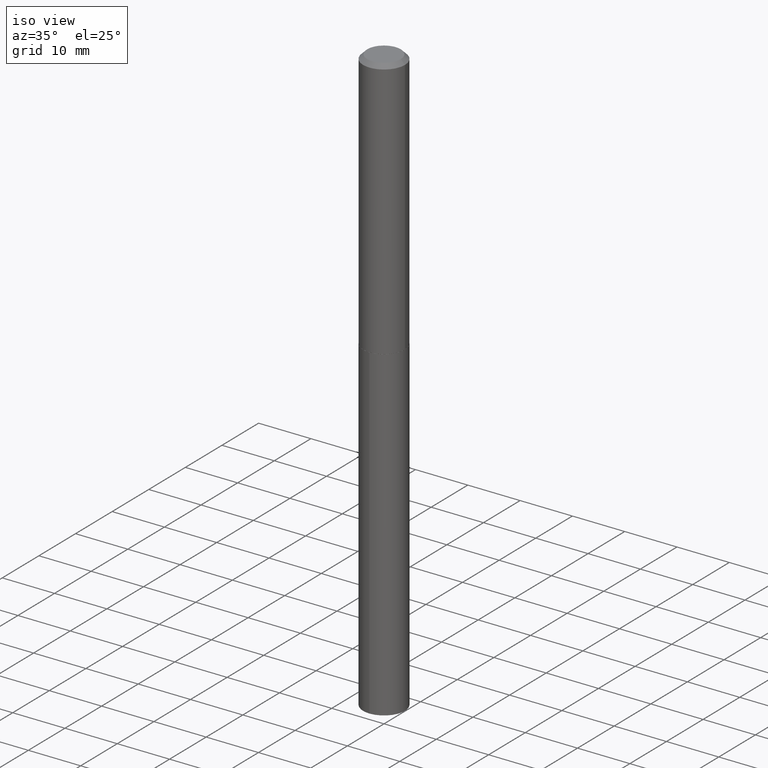
[diagram: clean part render]
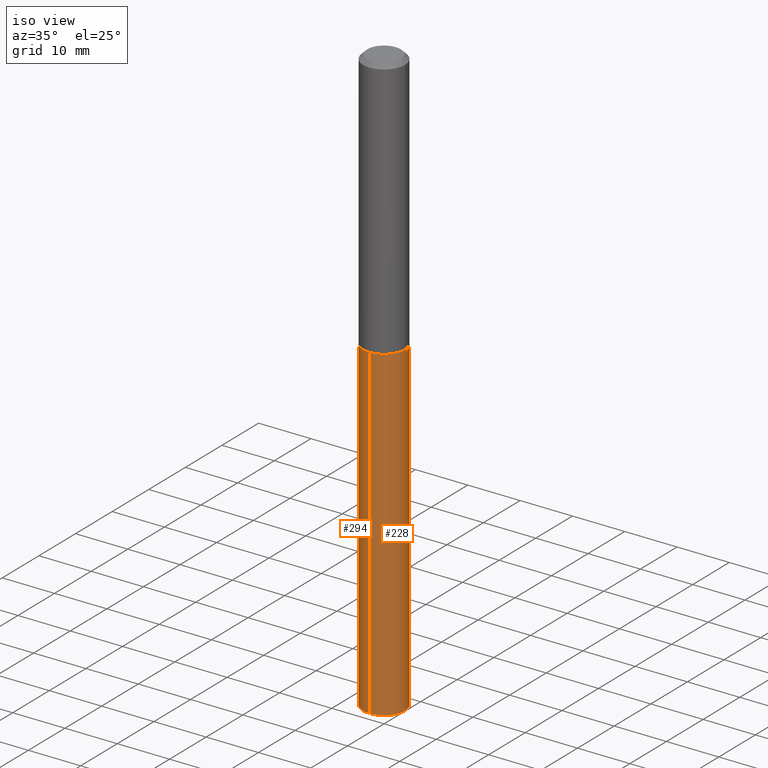
[diagram: same view with one multi-face feature highlighted, each face labeled with its STEP entity id]
A machine part, iso view. The highlighted faces form ONE feature: a constant-radius fillet chain: 2 tangent blend faces with common blend radius 4.0005 mm. The faces share edges in the B-rep.
Their STEP definitions:
[1] entity #294 (Cylinder):
#20 = CARTESIAN_POINT ( 'NONE',  ( 1.082641189133063271E-28, -1.545044664000453265E-14, -4.426159100090647058 ) ) ;
#29 = CARTESIAN_POINT ( 'NONE',  ( -1.099816621735538768E-15, -0.1575000000000068567, -1.968499999999999250 ) ) ;
#43 = FACE_OUTER_BOUND ( 'NONE', #319, .T. ) ;
#55 = AXIS2_PLACEMENT_3D ( 'NONE', #269, #210, #143 ) ;
#56 = ORIENTED_EDGE ( 'NONE', *, *, #231, .T. ) ;
#78 = EDGE_CURVE ( 'NONE', #139, #279, #236, .T. ) ;
#84 = ORIENTED_EDGE ( 'NONE', *, *, #126, .F. ) ;
#89 = DIRECTION ( 'NONE',  ( -2.446436345111260820E-29, 3.490095768032040163E-15, 1.000000000000000000 ) ) ;
#95 = CARTESIAN_POINT ( 'NONE',  ( -1.099816621735478617E-15, -0.1575000000000154332, -4.426159100090646170 ) ) ;
#103 = VERTEX_POINT ( 'NONE', #95 ) ;
#105 = VERTEX_POINT ( 'NONE', #385 ) ;
#114 = CARTESIAN_POINT ( 'NONE',  ( 1.119104808822265875E-15, 0.1574999999999845968, -4.426159100090647947 ) ) ;
#118 = EDGE_CURVE ( 'NONE', #103, #105, #233, .T. ) ;
#123 = DIRECTION ( 'NONE',  ( -2.446436345111260820E-29, 3.490095768032040163E-15, 1.000000000000000000 ) ) ;
#126 = EDGE_CURVE ( 'NONE', #279, #105, #323, .T. ) ;
#139 = VERTEX_POINT ( 'NONE', #114 ) ;
#143 = DIRECTION ( 'NONE',  ( -6.982962677686264344E-15, -1.000000000000000000, 3.469013325287953293E-15 ) ) ;
#149 = CIRCLE ( 'NONE', #206, 0.1575000000000000011 ) ;
#156 = CARTESIAN_POINT ( 'NONE',  ( 1.119104808822266269E-15, 0.1574999999999931177, -1.968500000000000139 ) ) ;
#160 = DIRECTION ( 'NONE',  ( -6.982962677686264344E-15, -1.000000000000000000, 3.469013325287953293E-15 ) ) ;
#182 = VECTOR ( 'NONE', #123, 39.37007874015748143 ) ;
#206 = AXIS2_PLACEMENT_3D ( 'NONE', #20, #256, #377 ) ;
#210 = DIRECTION ( 'NONE',  ( -2.446436345111260540E-29, 3.490095768032040163E-15, 1.000000000000000000 ) ) ;
#222 = CYLINDRICAL_SURFACE ( 'NONE', #289, 0.1575000000000000011 ) ;
#231 = EDGE_CURVE ( 'NONE', #139, #103, #149, .T. ) ;
#233 = LINE ( 'NONE', #29, #182 ) ;
#236 = LINE ( 'NONE', #353, #296 ) ;
#256 = DIRECTION ( 'NONE',  ( -2.446436345111260540E-29, 3.490095768032040163E-15, 1.000000000000000000 ) ) ;
#257 = DIRECTION ( 'NONE',  ( -2.446436345111260540E-29, 3.490095768032040163E-15, 1.000000000000000000 ) ) ;
#269 = CARTESIAN_POINT ( 'NONE',  ( 4.813905344975440153E-29, -6.872981015512730130E-15, -1.968499999999999472 ) ) ;
#279 = VERTEX_POINT ( 'NONE', #156 ) ;
#287 = ORIENTED_EDGE ( 'NONE', *, *, #78, .F. ) ;
#289 = AXIS2_PLACEMENT_3D ( 'NONE', #374, #257, #160 ) ;
#294 = ADVANCED_FACE ( 'NONE', ( #43 ), #222, .T. ) ;
#296 = VECTOR ( 'NONE', #89, 39.37007874015748143 ) ;
#319 = EDGE_LOOP ( 'NONE', ( #287, #56, #379, #84 ) ) ;
#323 = CIRCLE ( 'NONE', #55, 0.1575000000000000011 ) ;
#353 = CARTESIAN_POINT ( 'NONE',  ( 1.119104808822205527E-15, 0.1574999999999931177, -1.968500000000000361 ) ) ;
#374 = CARTESIAN_POINT ( 'NONE',  ( 4.813905344975440714E-29, -6.872981015512730918E-15, -1.968499999999999694 ) ) ;
#377 = DIRECTION ( 'NONE',  ( -6.982962677686264344E-15, -1.000000000000000000, 3.469013325287953293E-15 ) ) ;
#379 = ORIENTED_EDGE ( 'NONE', *, *, #118, .T. ) ;
#385 = CARTESIAN_POINT ( 'NONE',  ( -1.099816621735538768E-15, -0.1575000000000068567, -1.968499999999999028 ) ) ;
[2] entity #228 (Cylinder):
#13 = ORIENTED_EDGE ( 'NONE', *, *, #49, .F. ) ;
#19 = ORIENTED_EDGE ( 'NONE', *, *, #33, .T. ) ;
#27 = DIRECTION ( 'NONE',  ( -6.982962677686264344E-15, -1.000000000000000000, 3.469013325287953293E-15 ) ) ;
#29 = CARTESIAN_POINT ( 'NONE',  ( -1.099816621735538768E-15, -0.1575000000000068567, -1.968499999999999250 ) ) ;
#33 = EDGE_CURVE ( 'NONE', #103, #139, #337, .T. ) ;
#48 = ORIENTED_EDGE ( 'NONE', *, *, #118, .F. ) ;
#49 = EDGE_CURVE ( 'NONE', #105, #279, #186, .T. ) ;
#60 = CARTESIAN_POINT ( 'NONE',  ( 1.082641189133063271E-28, -1.545044664000453265E-14, -4.426159100090647058 ) ) ;
#78 = EDGE_CURVE ( 'NONE', #139, #279, #236, .T. ) ;
#88 = DIRECTION ( 'NONE',  ( -2.446436345111260540E-29, 3.490095768032040163E-15, 1.000000000000000000 ) ) ;
#89 = DIRECTION ( 'NONE',  ( -2.446436345111260820E-29, 3.490095768032040163E-15, 1.000000000000000000 ) ) ;
#95 = CARTESIAN_POINT ( 'NONE',  ( -1.099816621735478617E-15, -0.1575000000000154332, -4.426159100090646170 ) ) ;
#103 = VERTEX_POINT ( 'NONE', #95 ) ;
#105 = VERTEX_POINT ( 'NONE', #385 ) ;
#114 = CARTESIAN_POINT ( 'NONE',  ( 1.119104808822265875E-15, 0.1574999999999845968, -4.426159100090647947 ) ) ;
#118 = EDGE_CURVE ( 'NONE', #103, #105, #233, .T. ) ;
#120 = ORIENTED_EDGE ( 'NONE', *, *, #78, .T. ) ;
#123 = DIRECTION ( 'NONE',  ( -2.446436345111260820E-29, 3.490095768032040163E-15, 1.000000000000000000 ) ) ;
#139 = VERTEX_POINT ( 'NONE', #114 ) ;
#156 = CARTESIAN_POINT ( 'NONE',  ( 1.119104808822266269E-15, 0.1574999999999931177, -1.968500000000000139 ) ) ;
#169 = DIRECTION ( 'NONE',  ( -2.446436345111260540E-29, 3.490095768032040163E-15, 1.000000000000000000 ) ) ;
#179 = CARTESIAN_POINT ( 'NONE',  ( 4.813905344975440153E-29, -6.872981015512730130E-15, -1.968499999999999472 ) ) ;
#182 = VECTOR ( 'NONE', #123, 39.37007874015748143 ) ;
#186 = CIRCLE ( 'NONE', #268, 0.1575000000000000011 ) ;
#228 = ADVANCED_FACE ( 'NONE', ( #380 ), #349, .T. ) ;
#233 = LINE ( 'NONE', #29, #182 ) ;
#236 = LINE ( 'NONE', #353, #296 ) ;
#268 = AXIS2_PLACEMENT_3D ( 'NONE', #179, #88, #27 ) ;
#279 = VERTEX_POINT ( 'NONE', #156 ) ;
#286 = DIRECTION ( 'NONE',  ( -6.982962677686264344E-15, -1.000000000000000000, 3.469013325287953293E-15 ) ) ;
#296 = VECTOR ( 'NONE', #89, 39.37007874015748143 ) ;
#306 = AXIS2_PLACEMENT_3D ( 'NONE', #60, #327, #356 ) ;
#327 = DIRECTION ( 'NONE',  ( -2.446436345111260540E-29, 3.490095768032040163E-15, 1.000000000000000000 ) ) ;
#337 = CIRCLE ( 'NONE', #306, 0.1575000000000000011 ) ;
#349 = CYLINDRICAL_SURFACE ( 'NONE', #373, 0.1575000000000000011 ) ;
#351 = CARTESIAN_POINT ( 'NONE',  ( 4.813905344975440714E-29, -6.872981015512730918E-15, -1.968499999999999694 ) ) ;
#353 = CARTESIAN_POINT ( 'NONE',  ( 1.119104808822205527E-15, 0.1574999999999931177, -1.968500000000000361 ) ) ;
#356 = DIRECTION ( 'NONE',  ( -6.982962677686264344E-15, -1.000000000000000000, 3.469013325287953293E-15 ) ) ;
#371 = EDGE_LOOP ( 'NONE', ( #19, #120, #13, #48 ) ) ;
#373 = AXIS2_PLACEMENT_3D ( 'NONE', #351, #169, #286 ) ;
#380 = FACE_OUTER_BOUND ( 'NONE', #371, .T. ) ;
#385 = CARTESIAN_POINT ( 'NONE',  ( -1.099816621735538768E-15, -0.1575000000000068567, -1.968499999999999028 ) ) ;